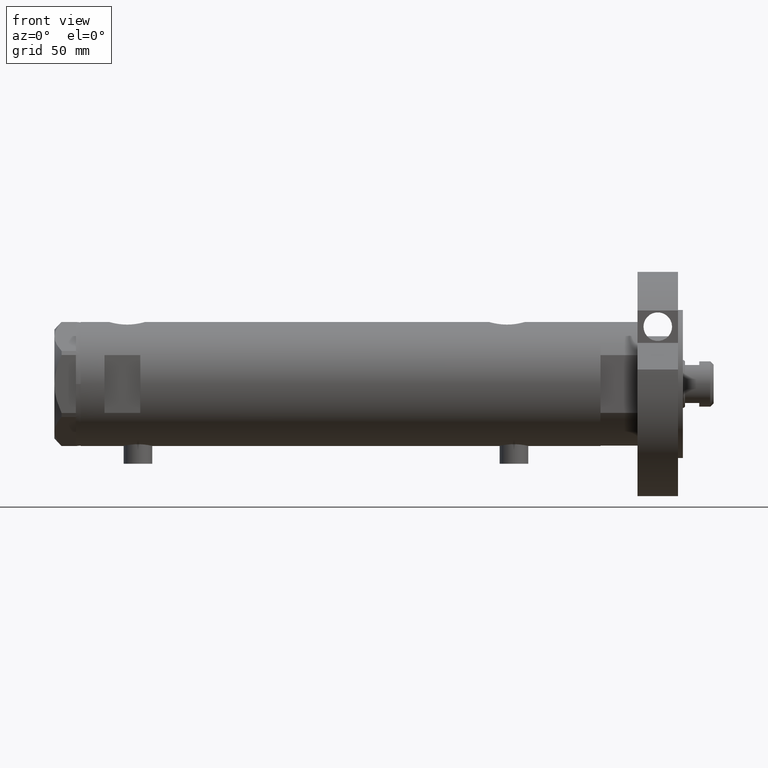
[diagram: clean part render]
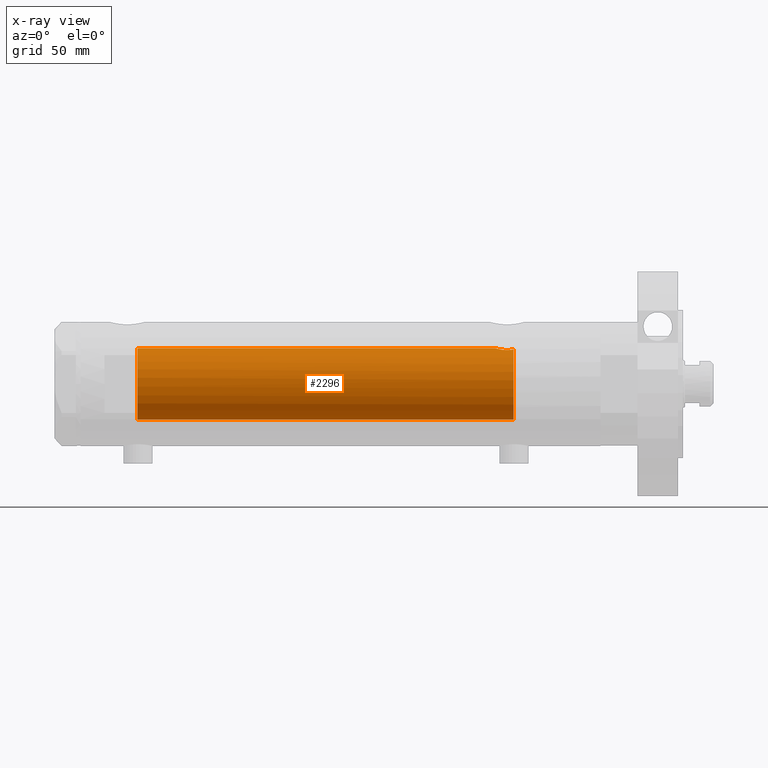
[diagram: x-ray — body ghosted, one internal face saturated and labeled with its STEP entity id]
A machine part, front view, then the same camera in x-ray: the body is ghosted and one INTERNAL B-rep face — a face not visible from any outside direction — is saturated and labeled: STEP entity #2296.
In plain terms, the highlighted cylindrical surface (edge-blend (fillet) strip) has radius 15 mm, axis along (1, 0, -0).
Its self-contained STEP definition (entity closure, byte-faithful):
#6 = CARTESIAN_POINT ( 'NONE',  ( 14.33594561531104006, -4.414979644548150617, -67.69453393419244946 ) ) ;
#30 = AXIS2_PLACEMENT_3D ( 'NONE', #6349, #3488, #5852 ) ;
#96 = EDGE_CURVE ( 'NONE', #5369, #4241, #2115, .T. ) ;
#261 = DIRECTION ( 'NONE',  ( -0.000000000000000000, -0.000000000000000000, -1.000000000000000000 ) ) ;
#396 = AXIS2_PLACEMENT_3D ( 'NONE', #2920, #3913, #3061 ) ;
#432 = CARTESIAN_POINT ( 'NONE',  ( 14.30602371879160728, -4.510400617436905790, -71.58665028800270136 ) ) ;
#473 = CARTESIAN_POINT ( 'NONE',  ( 14.72015646623406049, -2.909233045280597896, -65.82572079632734585 ) ) ;
#622 = CARTESIAN_POINT ( 'NONE',  ( 14.85289483991916981, -2.102865829523694163, 85.05860377881604961 ) ) ;
#963 = CARTESIAN_POINT ( 'NONE',  ( 14.18786347641750112, -4.868757996482119488, -69.63322300400297138 ) ) ;
#1121 = CARTESIAN_POINT ( 'NONE',  ( 14.98404828787190901, -0.7909490205761859904, 84.63356230794190083 ) ) ;
#1229 = EDGE_CURVE ( 'NONE', #5369, #2167, #6061, .T. ) ;
#1242 = CARTESIAN_POINT ( 'NONE',  ( 14.82638779339053947, -2.275571356824482638, 85.15000000000000568 ) ) ;
#1441 = FACE_OUTER_BOUND ( 'NONE', #5767, .T. ) ;
#1447 = B_SPLINE_CURVE_WITH_KNOTS ( 'NONE', 3,
 ( #3582, #5608, #1121, #4580, #4670, #2693, #622, #4708 ),
 .UNSPECIFIED., .F., .F.,
 ( 4, 2, 2, 4 ),
 ( 0.000000000000000000, 0.001182100180564269864, 0.001773150270846399592, 0.002364200361128529319 ),
 .UNSPECIFIED. ) ;
#1456 = CARTESIAN_POINT ( 'NONE',  ( 14.25856516724843637, -4.658255869285517825, -71.17044016644935311 ) ) ;
#1526 = CARTESIAN_POINT ( 'NONE',  ( 14.90017778876745247, -1.739641523727897710, -65.20130925695124802 ) ) ;
#1561 = CARTESIAN_POINT ( 'NONE',  ( 15.00000000000000000, 5.959273473684245944E-16, -64.88500000000000512 ) ) ;
#1571 = VERTEX_POINT ( 'NONE', #1242 ) ;
#1772 = CARTESIAN_POINT ( 'NONE',  ( -15.00000000000000000, 0.000000000000000000, -72.54999999999999716 ) ) ;
#1941 = CYLINDRICAL_SURFACE ( 'NONE', #2397, 15.00000000000000000 ) ;
#1956 = CARTESIAN_POINT ( 'NONE',  ( 14.42775250319759728, -4.105775281508738495, -72.36911445102909113 ) ) ;
#2019 = CARTESIAN_POINT ( 'NONE',  ( 14.84733308118440398, -2.144376633039211999, -65.37751912952717248 ) ) ;
#2055 = LINE ( 'NONE', #4430, #4630 ) ;
#2115 = B_SPLINE_CURVE_WITH_KNOTS ( 'NONE', 3,
 ( #2899, #1956, #4973, #6414, #432, #1456, #3990, #5976, #2489, #6443, #963, #4490, #3922, #5938, #3427, #3491, #6, #3459, #2934, #4945, #473, #2460, #2019, #1526, #3003, #2574, #4115, #6077, #3165, #1561 ),
 .UNSPECIFIED., .F., .F.,
 ( 4, 2, 2, 2, 2, 2, 2, 2, 2, 2, 2, 2, 2, 2, 4 ),
 ( 0.004672505804584295430, 0.005337629501999315365, 0.006002753199414335300, 0.006667876896829355235, 0.007333000594244375170, 0.007998124291659395105, 0.008663247989074415040, 0.009328371686489433240, 0.009993495383904454910, 0.01132374277873445662, 0.01265399017356445832, 0.01331911387097945050, 0.01398423756839444268, 0.01464936126580943312, 0.01531448496322442530 ),
 .UNSPECIFIED. ) ;
#2160 = ORIENTED_EDGE ( 'NONE', *, *, #5514, .T. ) ;
#2167 = VERTEX_POINT ( 'NONE', #1772 ) ;
#2249 = CARTESIAN_POINT ( 'NONE',  ( 14.46277203719950855, -3.978470183374511304, -72.54999999999999716 ) ) ;
#2296 = ADVANCED_FACE ( 'NONE', ( #1441 ), #1941, .F. ) ;
#2397 = AXIS2_PLACEMENT_3D ( 'NONE', #4412, #4836, #5426 ) ;
#2460 = CARTESIAN_POINT ( 'NONE',  ( 14.81710879718118079, -2.343063746046463613, -65.48067662538953471 ) ) ;
#2489 = CARTESIAN_POINT ( 'NONE',  ( 14.19797987272029793, -4.839174951492910992, -70.29741451501413962 ) ) ;
#2574 = CARTESIAN_POINT ( 'NONE',  ( 14.96064712090283955, -1.106639041422192049, -65.00738179736373468 ) ) ;
#2604 = VERTEX_POINT ( 'NONE', #3867 ) ;
#2693 = CARTESIAN_POINT ( 'NONE',  ( 14.87720562886503828, -1.924385875533404233, 84.97741675737692901 ) ) ;
#2899 = CARTESIAN_POINT ( 'NONE',  ( 14.46277203719950855, -3.978470183374511304, -72.54999999999999716 ) ) ;
#2920 = CARTESIAN_POINT ( 'NONE',  ( 0.000000000000000000, 0.000000000000000000, -72.54999999999999716 ) ) ;
#2934 = CARTESIAN_POINT ( 'NONE',  ( 14.49994286062941384, -3.853373987417223034, -66.74743896782911179 ) ) ;
#3003 = CARTESIAN_POINT ( 'NONE',  ( 14.92307637240704032, -1.532123959568890692, -65.12726557582080034 ) ) ;
#3061 = DIRECTION ( 'NONE',  ( -1.000000000000000000, 0.000000000000000000, 0.000000000000000000 ) ) ;
#3165 = CARTESIAN_POINT ( 'NONE',  ( 15.00000000000000888, -0.2216692655473423146, -64.88500000000003354 ) ) ;
#3427 = CARTESIAN_POINT ( 'NONE',  ( 14.25977760983849763, -4.654557688538883298, -68.31736805897654108 ) ) ;
#3459 = CARTESIAN_POINT ( 'NONE',  ( 14.42796883436190392, -4.108435602805834641, -67.10726922759032220 ) ) ;
#3488 = DIRECTION ( 'NONE',  ( 0.000000000000000000, 0.000000000000000000, 1.000000000000000000 ) ) ;
#3491 = CARTESIAN_POINT ( 'NONE',  ( 14.30772250772360366, -4.505024017690372418, -67.90010806953213773 ) ) ;
#3493 = ORIENTED_EDGE ( 'NONE', *, *, #4354, .F. ) ;
#3578 = ORIENTED_EDGE ( 'NONE', *, *, #1229, .T. ) ;
#3582 = CARTESIAN_POINT ( 'NONE',  ( 15.00000000000000000, 0.000000000000000000, 84.58500000000000796 ) ) ;
#3709 = ORIENTED_EDGE ( 'NONE', *, *, #6311, .F. ) ;
#3780 = LINE ( 'NONE', #4388, #5480 ) ;
#3812 = ORIENTED_EDGE ( 'NONE', *, *, #96, .F. ) ;
#3858 = VERTEX_POINT ( 'NONE', #6206 ) ;
#3867 = CARTESIAN_POINT ( 'NONE',  ( 15.00000000000000000, 0.000000000000000000, 84.58500000000000796 ) ) ;
#3913 = DIRECTION ( 'NONE',  ( 0.000000000000000000, 0.000000000000000000, -1.000000000000000000 ) ) ;
#3922 = CARTESIAN_POINT ( 'NONE',  ( 14.20926245015525957, -4.806160851464704287, -68.96377327795615031 ) ) ;
#3990 = CARTESIAN_POINT ( 'NONE',  ( 14.23846660849503110, -4.718934182878724570, -70.95401121469809880 ) ) ;
#4115 = CARTESIAN_POINT ( 'NONE',  ( 14.97537530859972321, -0.8874117095427768165, -64.96137464055831856 ) ) ;
#4241 = VERTEX_POINT ( 'NONE', #4910 ) ;
#4354 = EDGE_CURVE ( 'NONE', #2604, #1571, #1447, .T. ) ;
#4388 = CARTESIAN_POINT ( 'NONE',  ( -15.00000000000000000, 0.000000000000000000, 108.9499999999999886 ) ) ;
#4412 = CARTESIAN_POINT ( 'NONE',  ( 0.000000000000000000, 0.000000000000000000, 108.9499999999999886 ) ) ;
#4430 = CARTESIAN_POINT ( 'NONE',  ( 15.00000000000000000, 1.836970198721029589E-15, 108.9499999999999886 ) ) ;
#4490 = CARTESIAN_POINT ( 'NONE',  ( 14.19858338301463085, -4.837406781463694294, -69.18614104090498529 ) ) ;
#4580 = CARTESIAN_POINT ( 'NONE',  ( 14.93900636919600089, -1.364886281976675164, 84.77622504971311912 ) ) ;
#4630 = VECTOR ( 'NONE', #5041, 1000.000000000000000 ) ;
#4670 = CARTESIAN_POINT ( 'NONE',  ( 14.92029983160078288, -1.555365312915180320, 84.83609703141412695 ) ) ;
#4708 = CARTESIAN_POINT ( 'NONE',  ( 14.82638779339053947, -2.275571356824482638, 85.15000000000000568 ) ) ;
#4836 = DIRECTION ( 'NONE',  ( -0.000000000000000000, -0.000000000000000000, -1.000000000000000000 ) ) ;
#4910 = CARTESIAN_POINT ( 'NONE',  ( 15.00000000000000000, 5.959273473684245944E-16, -64.88500000000000512 ) ) ;
#4945 = CARTESIAN_POINT ( 'NONE',  ( 14.64727859494137263, -3.248701865452405801, -66.10174013696655493 ) ) ;
#4964 = ORIENTED_EDGE ( 'NONE', *, *, #5939, .T. ) ;
#4973 = CARTESIAN_POINT ( 'NONE',  ( 14.39424372609267877, -4.221002267729139668, -72.17893131093291004 ) ) ;
#5040 = CIRCLE ( 'NONE', #30, 15.00000000000000000 ) ;
#5041 = DIRECTION ( 'NONE',  ( -0.000000000000000000, -0.000000000000000000, -1.000000000000000000 ) ) ;
#5369 = VERTEX_POINT ( 'NONE', #2249 ) ;
#5426 = DIRECTION ( 'NONE',  ( -1.000000000000000000, 0.000000000000000000, 0.000000000000000000 ) ) ;
#5480 = VECTOR ( 'NONE', #261, 1000.000000000000000 ) ;
#5514 = EDGE_CURVE ( 'NONE', #3858, #1571, #5040, .T. ) ;
#5608 = CARTESIAN_POINT ( 'NONE',  ( 15.00000000000000711, -0.3999014018875933218, 84.58500000000002217 ) ) ;
#5767 = EDGE_LOOP ( 'NONE', ( #3493, #4964, #3812, #3578, #3709, #2160 ) ) ;
#5852 = DIRECTION ( 'NONE',  ( 1.000000000000000000, 0.000000000000000000, 0.000000000000000000 ) ) ;
#5938 = CARTESIAN_POINT ( 'NONE',  ( 14.23984499268011561, -4.714778477509576682, -68.53008258614765680 ) ) ;
#5939 = EDGE_CURVE ( 'NONE', #2604, #4241, #2055, .T. ) ;
#5976 = CARTESIAN_POINT ( 'NONE',  ( 14.20819413761016037, -4.809312895991457282, -70.51713251522167525 ) ) ;
#6061 = CIRCLE ( 'NONE', #396, 15.00000000000000000 ) ;
#6077 = CARTESIAN_POINT ( 'NONE',  ( 14.99508877558422881, -0.4434836953032569862, -64.90007684727665094 ) ) ;
#6206 = CARTESIAN_POINT ( 'NONE',  ( -15.00000000000000000, 0.000000000000000000, 85.15000000000000568 ) ) ;
#6311 = EDGE_CURVE ( 'NONE', #3858, #2167, #3780, .T. ) ;
#6349 = CARTESIAN_POINT ( 'NONE',  ( 0.000000000000000000, 0.000000000000000000, 85.15000000000000568 ) ) ;
#6414 = CARTESIAN_POINT ( 'NONE',  ( 14.33349657381506148, -4.422893686125038748, -71.78827841538880250 ) ) ;
#6443 = CARTESIAN_POINT ( 'NONE',  ( 14.18781489734108270, -4.868896704194244585, -69.85545969036061820 ) ) ;